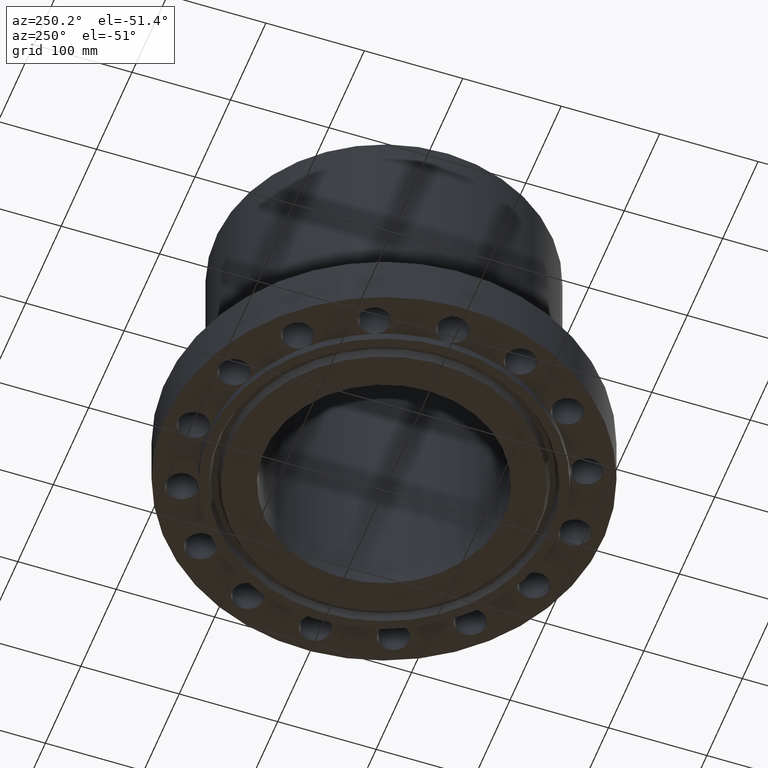
[diagram: clean part render]
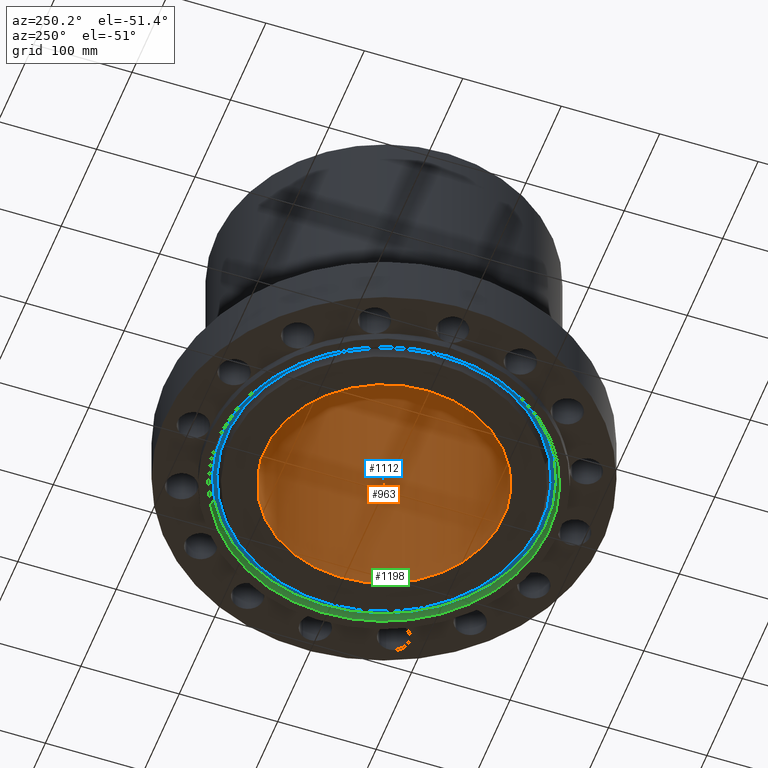
[diagram: same view with three faces highlighted in distinct colors, each labeled with its STEP entity id]
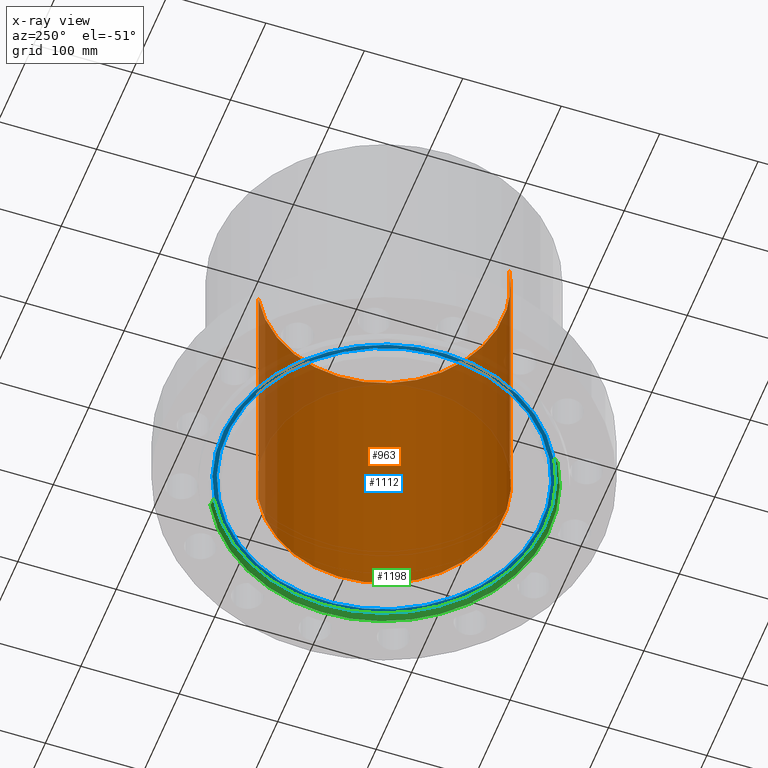
[diagram: x-ray of the same camera — body ghosted, the three highlighted faces saturated]
A machine part, auxiliary view with three faces highlighted in distinct colors.
The next image is the same camera in x-ray (body ghosted, the three faces saturated) — at least one of them is partly hidden behind the body in this view.
Their STEP definitions:

[orange] entity #963 — the highlighted cylindrical surface (partial cylindrical patch) has radius 121.412 mm, axis along (0, 0, -1).
#925=AXIS2_PLACEMENT_3D('Circle Axis2P3D',#923,#924,$) ;
#936=AXIS2_PLACEMENT_3D('Cylinder Axis2P3D',#933,#934,#935) ;
#947=AXIS2_PLACEMENT_3D('Circle Axis2P3D',#945,#946,$) ;
#918=CARTESIAN_POINT('Vertex',(-2.29165407454,-4.19484464585,11.75)) ;
#920=CARTESIAN_POINT('Vertex',(2.29165407454,4.19484464585,11.75)) ;
#923=CARTESIAN_POINT('Axis2P3D Location',(0.,0.,11.75)) ;
#933=CARTESIAN_POINT('Axis2P3D Location',(0.,0.,5.71850000002)) ;
#938=CARTESIAN_POINT('Line Origine',(2.29165407454,4.19484464585,5.71850000002)) ;
#942=CARTESIAN_POINT('Vertex',(2.29165407454,4.19484464585,-0.313000000001)) ;
#945=CARTESIAN_POINT('Axis2P3D Location',(0.,0.,-0.313000000001)) ;
#949=CARTESIAN_POINT('Vertex',(-2.29165407454,-4.19484464585,-0.313000000001)) ;
#952=CARTESIAN_POINT('Line Origine',(-2.29165407454,-4.19484464585,5.71850000002)) ;
#924=DIRECTION('Axis2P3D Direction',(0.,0.,-0.0393700787402)) ;
#934=DIRECTION('Axis2P3D Direction',(0.,0.,-0.0393700787402)) ;
#935=DIRECTION('Axis2P3D XDirection',(-0.0188750212049,-0.0345504945626,0.)) ;
#939=DIRECTION('Vector Direction',(0.,0.,-0.0393700787402)) ;
#946=DIRECTION('Axis2P3D Direction',(0.,0.,-0.0393700787402)) ;
#953=DIRECTION('Vector Direction',(0.,0.,-0.0393700787402)) ;
#940=VECTOR('Line Direction',#939,0.0393700787402) ;
#954=VECTOR('Line Direction',#953,0.0393700787402) ;
#958=ORIENTED_EDGE('',*,*,#927,.F.) ;
#959=ORIENTED_EDGE('',*,*,#944,.T.) ;
#960=ORIENTED_EDGE('',*,*,#951,.T.) ;
#961=ORIENTED_EDGE('',*,*,#956,.F.) ;
#963=ADVANCED_FACE('PartBody',(#962),#937,.F.) ;
#926=CIRCLE('generated circle',#925,4.78000000002) ;
#948=CIRCLE('generated circle',#947,4.78000000002) ;
#937=CYLINDRICAL_SURFACE('generated cylinder',#936,4.78000000002) ;
#927=EDGE_CURVE('',#921,#919,#926,.T.) ;
#944=EDGE_CURVE('',#921,#943,#941,.T.) ;
#951=EDGE_CURVE('',#943,#950,#948,.T.) ;
#956=EDGE_CURVE('',#919,#950,#955,.T.) ;
#957=EDGE_LOOP('',(#958,#959,#960,#961)) ;
#962=FACE_OUTER_BOUND('',#957,.T.) ;
#941=LINE('Line',#938,#940) ;
#955=LINE('Line',#952,#954) ;
#919=VERTEX_POINT('',#918) ;
#921=VERTEX_POINT('',#920) ;
#943=VERTEX_POINT('',#942) ;
#950=VERTEX_POINT('',#949) ;

[blue] entity #1112 — the highlighted planar face has unit normal (0, 0, -1).
#78=AXIS2_PLACEMENT_3D('Plane Axis2P3D',#75,#76,#77) ;
#1061=AXIS2_PLACEMENT_3D('Circle Axis2P3D',#1059,#1060,$) ;
#1080=AXIS2_PLACEMENT_3D('Circle Axis2P3D',#1078,#1079,$) ;
#1092=AXIS2_PLACEMENT_3D('Circle Axis2P3D',#1090,#1091,$) ;
#1101=AXIS2_PLACEMENT_3D('Circle Axis2P3D',#1099,#1100,$) ;
#75=CARTESIAN_POINT('Axis2P3D Location',(0.,6.2938790699,0.)) ;
#1056=CARTESIAN_POINT('Vertex',(-3.01744636299,-5.52339851839,3.01596018501E-016)) ;
#1059=CARTESIAN_POINT('Axis2P3D Location',(0.,0.,3.01596018501E-016)) ;
#1063=CARTESIAN_POINT('Vertex',(3.01744636299,5.52339851839,3.01596018501E-016)) ;
#1078=CARTESIAN_POINT('Axis2P3D Location',(0.,0.,3.01596018501E-016)) ;
#1090=CARTESIAN_POINT('Axis2P3D Location',(0.,0.,0.)) ;
#1094=CARTESIAN_POINT('Vertex',(-3.09522925423,-5.66577914576,-1.26757746906E-016)) ;
#1096=CARTESIAN_POINT('Vertex',(3.09522925423,5.66577914576,-1.26757746906E-016)) ;
#1099=CARTESIAN_POINT('Axis2P3D Location',(0.,0.,0.)) ;
#76=DIRECTION('Axis2P3D Direction',(0.,0.,-0.0393700787402)) ;
#77=DIRECTION('Axis2P3D XDirection',(0.0393700787402,0.,0.)) ;
#1060=DIRECTION('Axis2P3D Direction',(0.,0.,-0.0393700787402)) ;
#1079=DIRECTION('Axis2P3D Direction',(0.,0.,-0.0393700787402)) ;
#1091=DIRECTION('Axis2P3D Direction',(0.,0.,-0.0393700787402)) ;
#1100=DIRECTION('Axis2P3D Direction',(0.,0.,-0.0393700787402)) ;
#1105=ORIENTED_EDGE('',*,*,#1098,.T.) ;
#1106=ORIENTED_EDGE('',*,*,#1103,.T.) ;
#1109=ORIENTED_EDGE('',*,*,#1082,.F.) ;
#1110=ORIENTED_EDGE('',*,*,#1065,.F.) ;
#1111=FACE_BOUND('',#1108,.T.) ;
#1112=ADVANCED_FACE('PartBody',(#1107,#1111),#79,.T.) ;
#1062=CIRCLE('generated circle',#1061,6.2938790699) ;
#1081=CIRCLE('generated circle',#1080,6.2938790699) ;
#1093=CIRCLE('generated circle',#1092,6.45612093016) ;
#1102=CIRCLE('generated circle',#1101,6.45612093016) ;
#1065=EDGE_CURVE('',#1057,#1064,#1062,.T.) ;
#1082=EDGE_CURVE('',#1064,#1057,#1081,.T.) ;
#1098=EDGE_CURVE('',#1095,#1097,#1093,.T.) ;
#1103=EDGE_CURVE('',#1097,#1095,#1102,.T.) ;
#1104=EDGE_LOOP('',(#1105,#1106)) ;
#1108=EDGE_LOOP('',(#1109,#1110)) ;
#1107=FACE_OUTER_BOUND('',#1104,.T.) ;
#79=PLANE('',#78) ;
#1057=VERTEX_POINT('',#1056) ;
#1064=VERTEX_POINT('',#1063) ;
#1095=VERTEX_POINT('',#1094) ;
#1097=VERTEX_POINT('',#1096) ;

[green] entity #1198 — the highlighted conical surface has half-angle 23 deg.
#1146=AXIS2_PLACEMENT_3D('Circle Axis2P3D',#1144,#1145,$) ;
#1159=AXIS2_PLACEMENT_3D('Cone Axis2P3D',#1156,#1157,#1158) ;
#1189=AXIS2_PLACEMENT_3D('Circle Axis2P3D',#1187,#1188,$) ;
#1122=CARTESIAN_POINT('Vertex',(-3.10890997382,-5.69082153499,-0.0188873350169)) ;
#1129=CARTESIAN_POINT('Vertex',(3.10890997382,5.69082153499,-0.0188873350169)) ;
#1144=CARTESIAN_POINT('Axis2P3D Location',(0.,0.,-0.0188873350169)) ;
#1156=CARTESIAN_POINT('Axis2P3D Location',(0.,0.,-0.0188873350169)) ;
#1161=CARTESIAN_POINT('Line Origine',(-3.13883653562,-5.74560173892,-0.165943667509)) ;
#1165=CARTESIAN_POINT('Vertex',(-3.16876309742,-5.80038194284,-0.313000000001)) ;
#1172=CARTESIAN_POINT('Vertex',(3.16876309742,5.80038194284,-0.313000000001)) ;
#1175=CARTESIAN_POINT('Line Origine',(3.13883653562,5.74560173892,-0.165943667509)) ;
#1187=CARTESIAN_POINT('Axis2P3D Location',(0.,0.,-0.313000000001)) ;
#1145=DIRECTION('Axis2P3D Direction',(0.,0.,-0.0393700787402)) ;
#1157=DIRECTION('Axis2P3D Direction',(0.,0.,-0.0393700787402)) ;
#1158=DIRECTION('Axis2P3D XDirection',(0.0188750212049,0.0345504945626,0.)) ;
#1162=DIRECTION('Vector Direction',(-0.00737505833565,-0.0134999537303,-0.0362403485611)) ;
#1176=DIRECTION('Vector Direction',(0.00737505833565,0.0134999537303,-0.0362403485611)) ;
#1188=DIRECTION('Axis2P3D Direction',(0.,0.,-0.0393700787402)) ;
#1163=VECTOR('Line Direction',#1162,0.0393700787402) ;
#1177=VECTOR('Line Direction',#1176,0.0393700787402) ;
#1193=ORIENTED_EDGE('',*,*,#1148,.F.) ;
#1194=ORIENTED_EDGE('',*,*,#1179,.T.) ;
#1195=ORIENTED_EDGE('',*,*,#1191,.T.) ;
#1196=ORIENTED_EDGE('',*,*,#1167,.F.) ;
#1198=ADVANCED_FACE('PartBody',(#1197),#1160,.F.) ;
#1147=CIRCLE('generated circle',#1146,6.48465658061) ;
#1190=CIRCLE('generated circle',#1189,6.60950000003) ;
#1160=CONICAL_SURFACE('Cone',#1159,6.48465658061,0.401425727959) ;
#1148=EDGE_CURVE('',#1130,#1123,#1147,.T.) ;
#1167=EDGE_CURVE('',#1123,#1166,#1164,.T.) ;
#1179=EDGE_CURVE('',#1130,#1173,#1178,.T.) ;
#1191=EDGE_CURVE('',#1173,#1166,#1190,.T.) ;
#1192=EDGE_LOOP('',(#1193,#1194,#1195,#1196)) ;
#1197=FACE_OUTER_BOUND('',#1192,.T.) ;
#1164=LINE('Line',#1161,#1163) ;
#1178=LINE('Line',#1175,#1177) ;
#1123=VERTEX_POINT('',#1122) ;
#1130=VERTEX_POINT('',#1129) ;
#1166=VERTEX_POINT('',#1165) ;
#1173=VERTEX_POINT('',#1172) ;